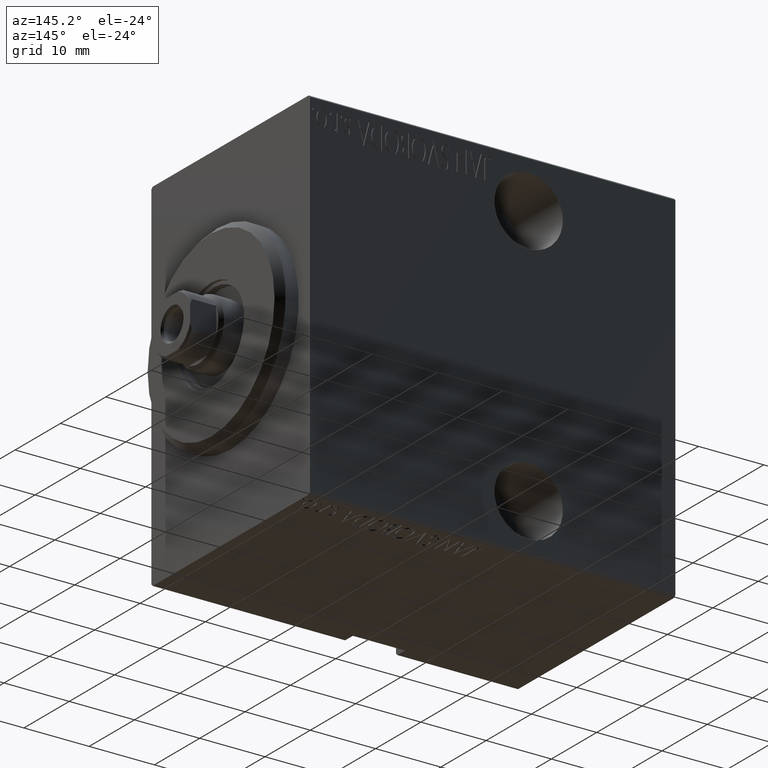
[diagram: clean part render]
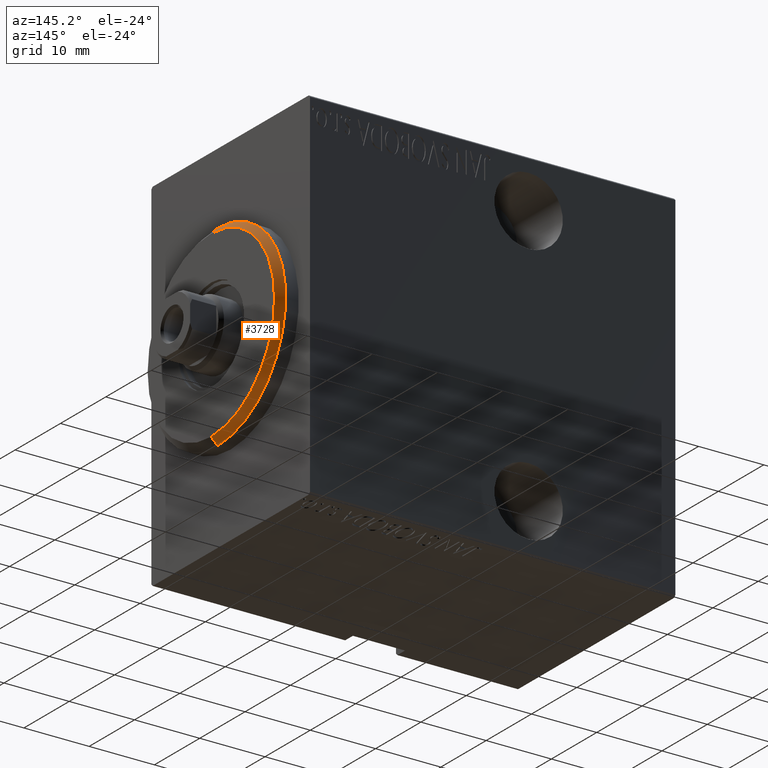
[diagram: same view with one face highlighted and labeled with its STEP entity id]
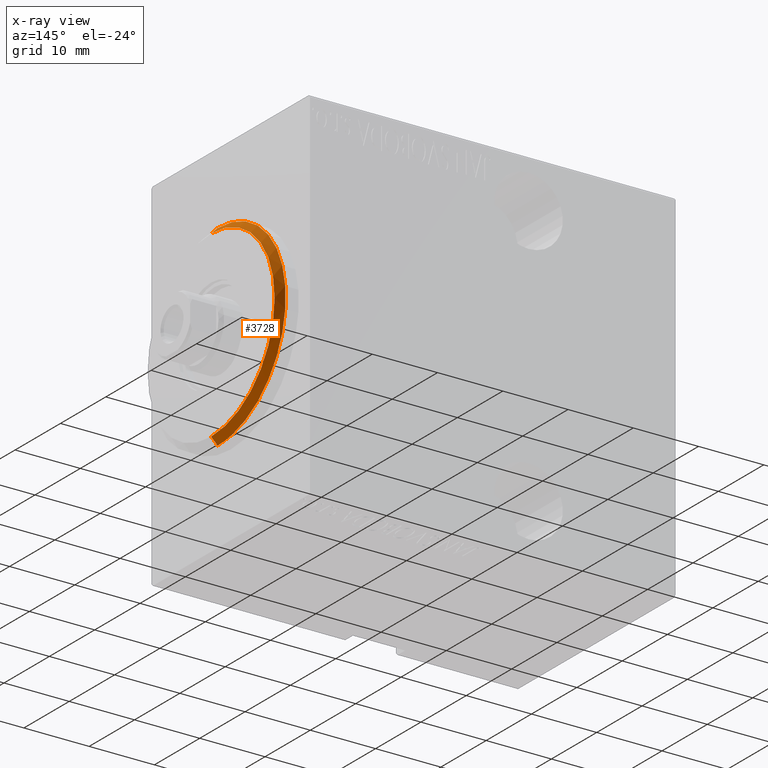
[diagram: x-ray of the same camera — body ghosted, the highlighted face saturated]
A machine part, auxiliary view. The second image highlights one B-rep face of the part: STEP entity #3728.
The next image is the same camera in x-ray: the body ghosted, the highlighted face saturated — about 0% of this face is hidden behind the body in this view.
In plain terms, the highlighted conical surface has half-angle 45 deg.
Its self-contained STEP definition (entity closure, byte-faithful):
#215 = AXIS2_PLACEMENT_3D ( 'NONE', #17149, #3060, #26300 ) ;
#1153 = AXIS2_PLACEMENT_3D ( 'NONE', #10144, #3419, #19697 ) ;
#1275 = VECTOR ( 'NONE', #34416, 999.9999999999998863 ) ;
#3060 = DIRECTION ( 'NONE',  ( -1.000000000000000000, 0.000000000000000000, 0.000000000000000000 ) ) ;
#3419 = DIRECTION ( 'NONE',  ( 1.000000000000000000, -0.000000000000000000, 0.000000000000000000 ) ) ;
#3728 = ADVANCED_FACE ( 'NONE', ( #10429 ), #7858, .T. ) ;
#5833 = EDGE_CURVE ( 'NONE', #15952, #35706, #14071, .T. ) ;
#5880 = ORIENTED_EDGE ( 'NONE', *, *, #26342, .F. ) ;
#7858 = CONICAL_SURFACE ( 'NONE', #215, 13.99999999999998934, 0.7853981633974473908 ) ;
#9000 = CIRCLE ( 'NONE', #20089, 15.00000000000000000 ) ;
#10144 = CARTESIAN_POINT ( 'NONE',  ( 3.000000000000000000, 0.000000000000000000, 0.000000000000000000 ) ) ;
#10429 = FACE_OUTER_BOUND ( 'NONE', #32059, .T. ) ;
#10797 = ORIENTED_EDGE ( 'NONE', *, *, #36192, .F. ) ;
#12207 = CIRCLE ( 'NONE', #1153, 13.99999999999998934 ) ;
#12600 = ORIENTED_EDGE ( 'NONE', *, *, #5833, .T. ) ;
#14071 = LINE ( 'NONE', #27340, #16886 ) ;
#14402 = LINE ( 'NONE', #23961, #1275 ) ;
#15952 = VERTEX_POINT ( 'NONE', #38641 ) ;
#16886 = VECTOR ( 'NONE', #27988, 999.9999999999998863 ) ;
#17149 = CARTESIAN_POINT ( 'NONE',  ( 3.000000000000000000, 0.000000000000000000, 0.000000000000000000 ) ) ;
#17677 = CARTESIAN_POINT ( 'NONE',  ( 1.999999999999988676, 0.000000000000000000, 15.00000000000000000 ) ) ;
#19697 = DIRECTION ( 'NONE',  ( 0.000000000000000000, 0.000000000000000000, -1.000000000000000000 ) ) ;
#20089 = AXIS2_PLACEMENT_3D ( 'NONE', #37590, #27803, #21480 ) ;
#21480 = DIRECTION ( 'NONE',  ( 0.000000000000000000, 0.000000000000000000, -1.000000000000000000 ) ) ;
#21873 = ORIENTED_EDGE ( 'NONE', *, *, #41684, .F. ) ;
#23961 = CARTESIAN_POINT ( 'NONE',  ( 3.000000000000000000, 0.000000000000000000, 13.99999999999998934 ) ) ;
#26300 = DIRECTION ( 'NONE',  ( 0.000000000000000000, 0.000000000000000000, 1.000000000000000000 ) ) ;
#26342 = EDGE_CURVE ( 'NONE', #38413, #35706, #9000, .T. ) ;
#27340 = CARTESIAN_POINT ( 'NONE',  ( 3.000000000000000000, 1.714505518806293257E-15, -13.99999999999998934 ) ) ;
#27803 = DIRECTION ( 'NONE',  ( -1.000000000000000000, 0.000000000000000000, 0.000000000000000000 ) ) ;
#27988 = DIRECTION ( 'NONE',  ( -0.7071067811865482389, 8.659560562354926695E-17, -0.7071067811865469066 ) ) ;
#30469 = CARTESIAN_POINT ( 'NONE',  ( 1.999999999999988676, 1.836970198721029589E-15, -15.00000000000000000 ) ) ;
#32059 = EDGE_LOOP ( 'NONE', ( #10797, #12600, #5880, #21873 ) ) ;
#32177 = VERTEX_POINT ( 'NONE', #39748 ) ;
#34416 = DIRECTION ( 'NONE',  ( -0.7071067811865482389, 0.000000000000000000, 0.7071067811865469066 ) ) ;
#35706 = VERTEX_POINT ( 'NONE', #30469 ) ;
#36192 = EDGE_CURVE ( 'NONE', #15952, #32177, #12207, .T. ) ;
#37590 = CARTESIAN_POINT ( 'NONE',  ( 1.999999999999988676, 0.000000000000000000, 0.000000000000000000 ) ) ;
#38413 = VERTEX_POINT ( 'NONE', #17677 ) ;
#38641 = CARTESIAN_POINT ( 'NONE',  ( 3.000000000000000000, 1.775737858763661226E-15, -13.99999999999998934 ) ) ;
#39748 = CARTESIAN_POINT ( 'NONE',  ( 3.000000000000000000, 0.000000000000000000, 13.99999999999998934 ) ) ;
#41684 = EDGE_CURVE ( 'NONE', #32177, #38413, #14402, .T. ) ;